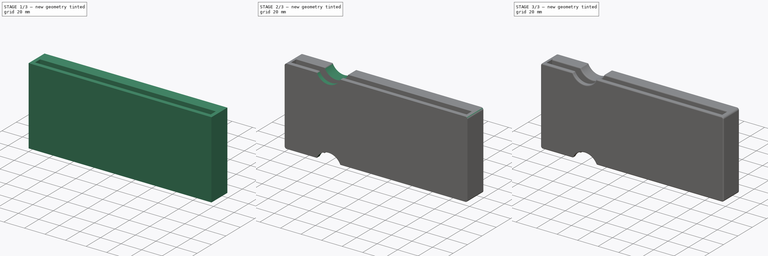
[diagram: build sequence overview — one tinted view per stage of 3, left to right]
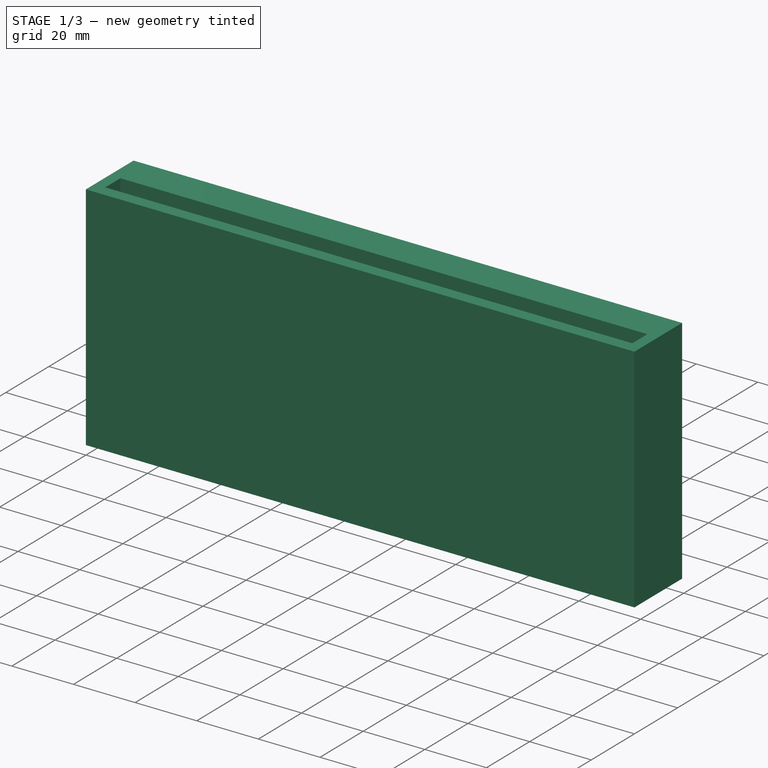
[diagram: stage 1 of 3 — iso view after this stage's code; geometry added in this stage tinted green]
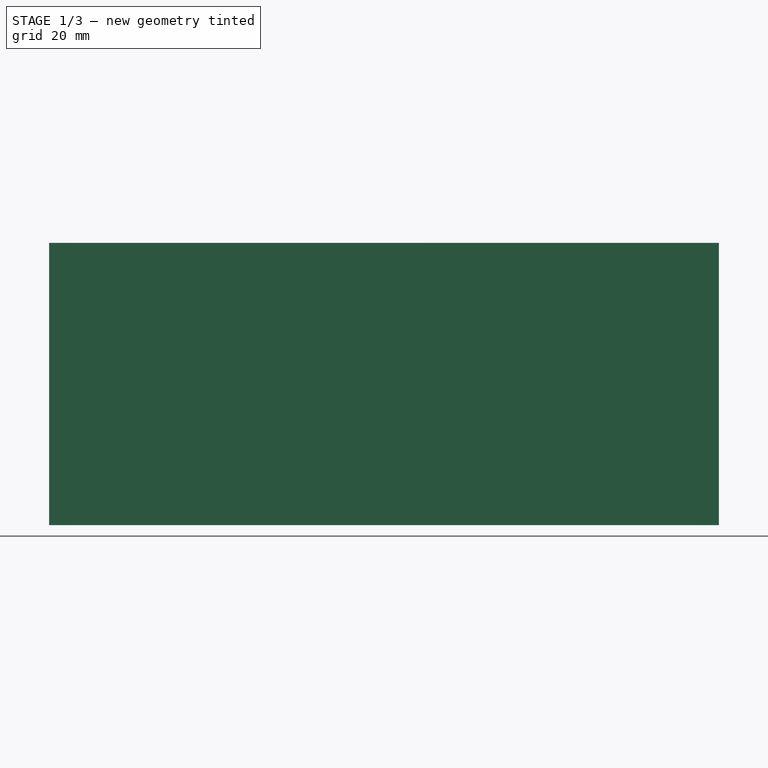
[diagram: stage 1 of 3 — front view after this stage's code; geometry added in this stage tinted green]
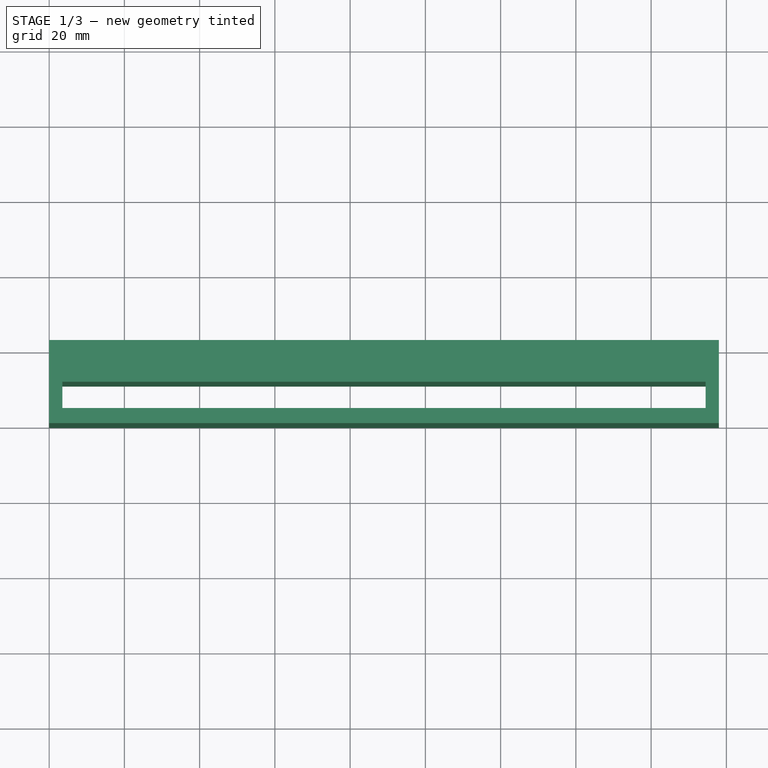
[diagram: stage 1 of 3 — top view after this stage's code; geometry added in this stage tinted green]
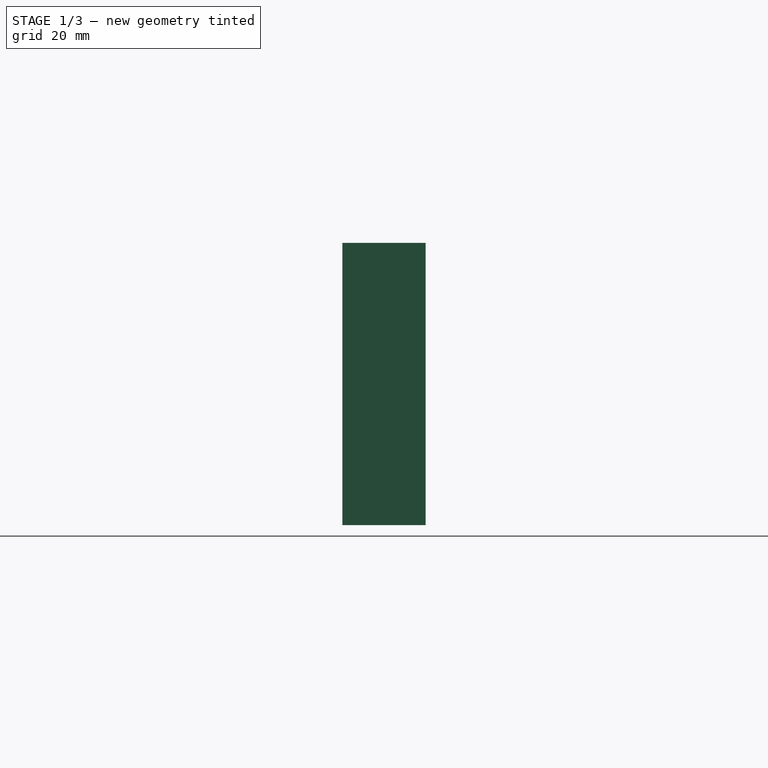
[diagram: stage 1 of 3 — right view after this stage's code; geometry added in this stage tinted green]
FCSTD DOCUMENT  (FreeCAD 1.0R38641 +678 (Git))
Label: lapping_plate_holder
License: All rights reserved
LicenseURL: https://en.wikipedia.org/wiki/All_rights_reserved
objects: Sketcher::SketchObject×4, PartDesign::Pocket×3, PartDesign::Fillet×2, Spreadsheet::Sheet×1, PartDesign::Pad×1, PartDesign::Body×1
note: 27 computed .brp shape members not serialized (recipe doc carries the construction recipe); baked Part::Feature solids carry a one-line shape summary decoded from their .brp

FEATURE [Sketcher::SketchObject] Sketch
  ArcFitTolerance = 1e-06
  AttachmentSupport = -> [XY_Plane001]
  FullyConstrained = true
  MakeInternals = false
  MapMode = 5
  expr: Constraints[19] = Spreadsheet.ewt
  expr: Constraints[20] = Spreadsheet.tt
  expr: Constraints[21] = Spreadsheet.pl
  expr: Constraints[22] = Spreadsheet.pst
  expr: Constraints[2] = Spreadsheet.pl + 2 * Spreadsheet.ewt
  expr: Constraints[5] = Spreadsheet.tt * 2 + Spreadsheet.mh + Spreadsheet.pst + 5
  sketch-geometry (8):
    g0: LineSegment StartX=0 StartY=0 StartZ=0 EndX=178 EndY=0 EndZ=0
    g1: LineSegment StartX=178 StartY=0 StartZ=0 EndX=178 EndY=22.1 EndZ=0
    g2: LineSegment StartX=0 StartY=0 StartZ=0 EndX=0 EndY=22.1 EndZ=0
    g3: LineSegment StartX=178 StartY=22.1 StartZ=0 EndX=0 EndY=22.1 EndZ=0
    g4: LineSegment StartX=3.5 StartY=11 StartZ=0 EndX=3.5 EndY=4 EndZ=0
    g5: LineSegment StartX=3.5 StartY=4 StartZ=0 EndX=174.5 EndY=4 EndZ=0
    g6: LineSegment StartX=174.5 StartY=4 StartZ=0 EndX=174.5 EndY=11 EndZ=0
    g7: LineSegment StartX=174.5 StartY=11 StartZ=0 EndX=3.5 EndY=11 EndZ=0
  constraints (23):
    c: Coincident(g0,g-1)
    c: Horizontal(g0)
    c: DistanceX(g0,g0) = 178
    c: Coincident(g1,g0)
    c: Vertical(g1)
    c: DistanceY(g1,g1) = 22.1
    c: Coincident(g2,g0)
    c: PointOnObject(g2,g-2)
    c: Coincident(g3,g1)
    c: Coincident(g3,g2)
    c: Horizontal(g3)
    c: Coincident(g4,g5)
    c: Coincident(g5,g6)
    c: Coincident(g6,g7)
    c: Coincident(g7,g4)
    c: Vertical(g4)
    c: Vertical(g6)
    c: Horizontal(g5)
    c: Horizontal(g7)
    c: DistanceX(g0,g4) = 3.5
    c: DistanceY(g0,g4) = 4
    c: DistanceX(g5,g5) = 171
    c: DistanceY(g4,g4) = 7
FEATURE [Spreadsheet::Sheet] Spreadsheet
  cells = A1='ph; B1(ph)=1; C1='plate height; A2='pw; B2(pw)=75; C2='plate width; A3='pl; B3(pl)=171; C3='pate lenght; A5='ewt; B5(ewt)=3.5; C5='end wall thickness; A6='tt; B6(tt)=4; C6='top thickness; A7='pst; B7(pst)=7; C7='plate storage thickness; A9='mh; B9(mh)=2.1; C9='magnet height; A10='md; B10(md)=10.5; C10='magnet diameter
FEATURE [PartDesign::Pad] Pad
  Direction = (0,0,1)
  Length = 75
  Length2 = 10
  Profile = -> Sketch
  ReferenceAxis = -> Sketch [N_Axis]
  Refine = true
  Suppressed = false
  Type = 0
  expr: Length = Spreadsheet.pw
FEATURE [Sketcher::SketchObject] Sketch001
  ArcFitTolerance = 1e-06
  AttachmentSupport = -> [Pad]
  FullyConstrained = true
  MakeInternals = false
  MapMode = 5
  Placement = pos=(0,22.1,0) rot=(0,0.707107,0.707107;3.14159rad)
  expr: Constraints[0] = Spreadsheet.md
  expr: Constraints[13] = (2 * Spreadsheet.ewt + Spreadsheet.pl) / 2
  expr: Constraints[19] = 10 + Spreadsheet.md / 2
  expr: Constraints[20] = Spreadsheet.pw - 10 - Spreadsheet.md / 2
  expr: Constraints[21] = Spreadsheet.md / 2 + 10
  sketch-geometry (8):
    g0: Circle CenterX=-162.75 CenterY=59.75 CenterZ=0 NormalX=0 NormalY=0 NormalZ=1 AngleXU=0 Radius=5.25
    g1: Circle CenterX=-162.75 CenterY=15.25 CenterZ=0 NormalX=0 NormalY=0 NormalZ=1 AngleXU=0 Radius=5.25
    g2: Circle CenterX=-15.25 CenterY=59.75 CenterZ=0 NormalX=0 NormalY=0 NormalZ=1 AngleXU=0 Radius=5.25
    g3: Circle CenterX=-15.25 CenterY=15.25 CenterZ=0 NormalX=0 NormalY=0 NormalZ=1 AngleXU=0 Radius=5.25
    g4: Circle CenterX=-89 CenterY=59.75 CenterZ=0 NormalX=0 NormalY=0 NormalZ=1 AngleXU=0 Radius=5.25
    g5: Circle CenterX=-89 CenterY=15.25 CenterZ=0 NormalX=0 NormalY=0 NormalZ=1 AngleXU=0 Radius=5.25
    g6: LineSegment [constr] StartX=-162.75 StartY=15.25 StartZ=0 EndX=-89 EndY=15.25 EndZ=0
    g7: LineSegment [constr] StartX=-89 StartY=15.25 StartZ=0 EndX=-15.25 EndY=15.25 EndZ=0
  constraints (22):
    c: Diameter(g1) = 10.5
    c: Equal(g4,g1)
    c: Equal(g1,g0)
    c: Equal(g0,g5)
    c: Equal(g5,g3)
    c: Equal(g3,g2)
    c: Horizontal(g3,g5)
    c: Horizontal(g5,g1)
    c: Horizontal(g2,g4)
    c: Horizontal(g4,g0)
    c: Vertical(g1,g0)
    c: Vertical(g5,g4)
    c: Vertical(g3,g2)
    c: DistanceX(g5,g-1) = 89
    c: Coincident(g6,g1)
    c: Coincident(g6,g5)
    c: Coincident(g7,g5)
    c: Coincident(g7,g3)
    c: Equal(g6,g7)
    c: DistanceY(g-1,g3) = 15.25
    c: DistanceY(g-1,g2) = 59.75
    c: DistanceX(g3,g-1) = 15.25
FEATURE [PartDesign::Pocket] Pocket
  BaseFeature = -> Pad
  Direction = (0,-1,2e-16)
  Length = 2.1
  Length2 = 5
  Profile = -> Sketch001
  ReferenceAxis = -> Sketch001 [N_Axis]
  Refine = true
  Suppressed = false
  Type = 0
  expr: Length = Spreadsheet.mh
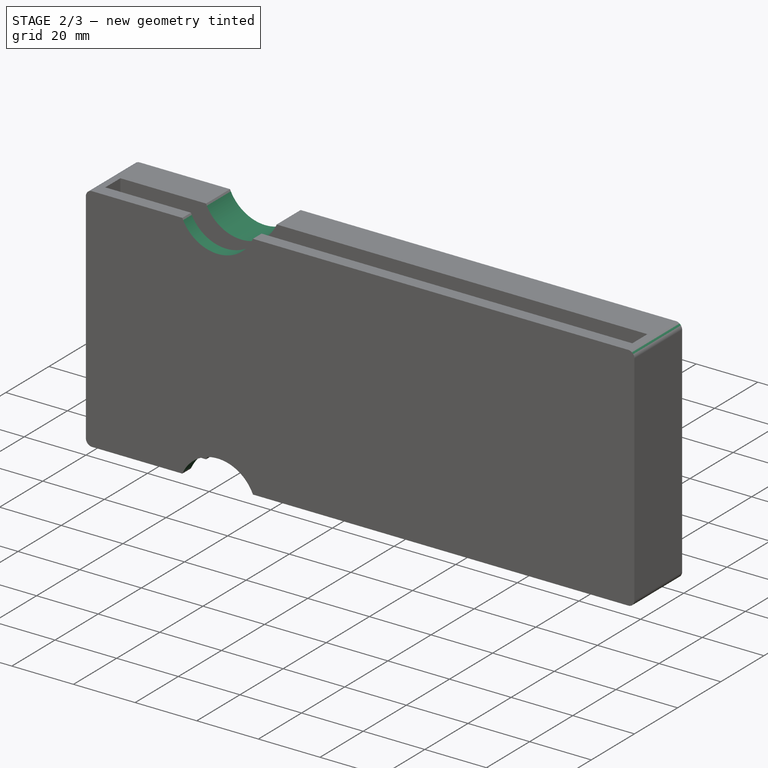
[diagram: stage 2 of 3 — iso view after this stage's code; geometry added in this stage tinted green]
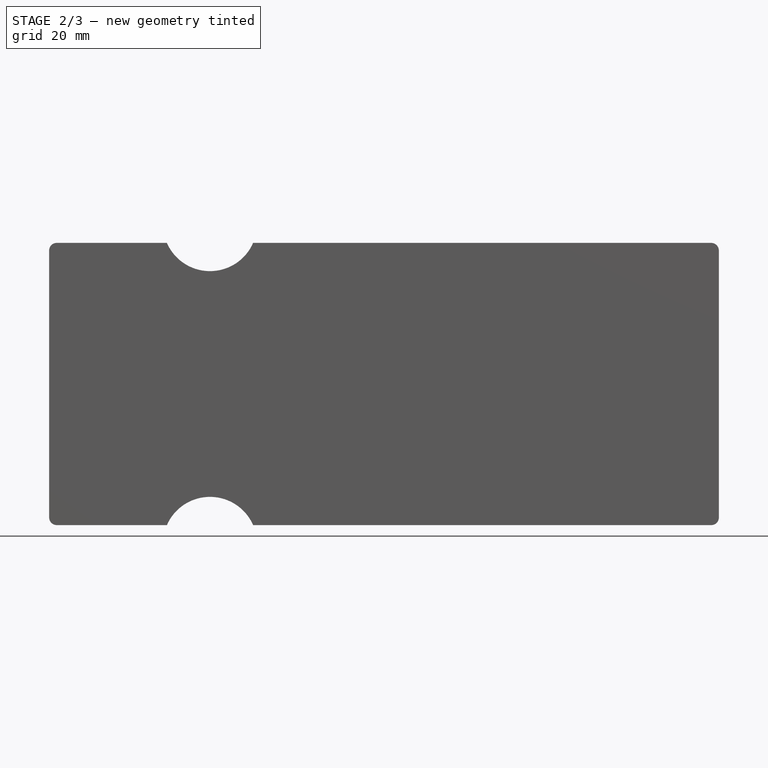
[diagram: stage 2 of 3 — front view after this stage's code; geometry added in this stage tinted green]
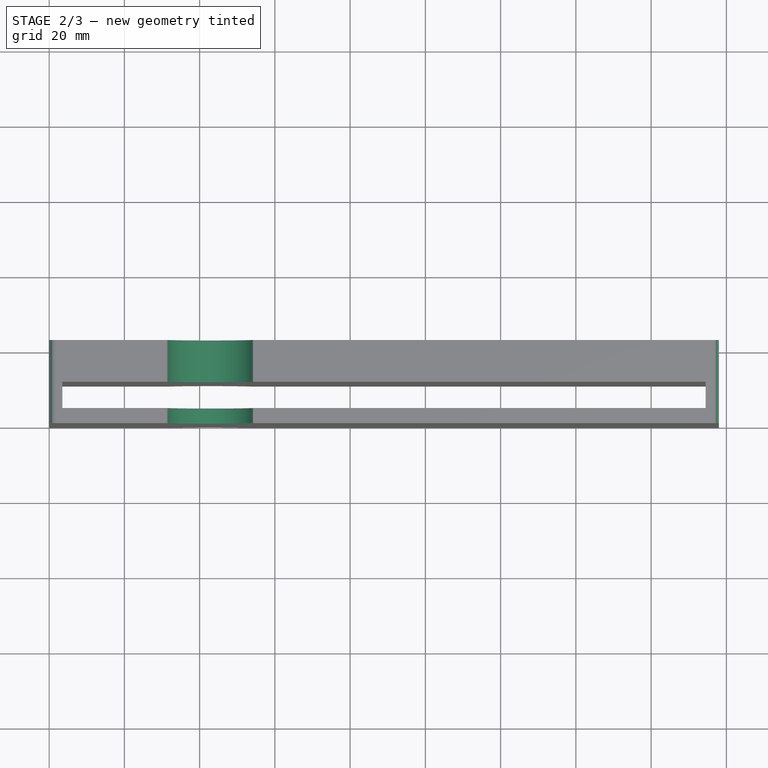
[diagram: stage 2 of 3 — top view after this stage's code; geometry added in this stage tinted green]
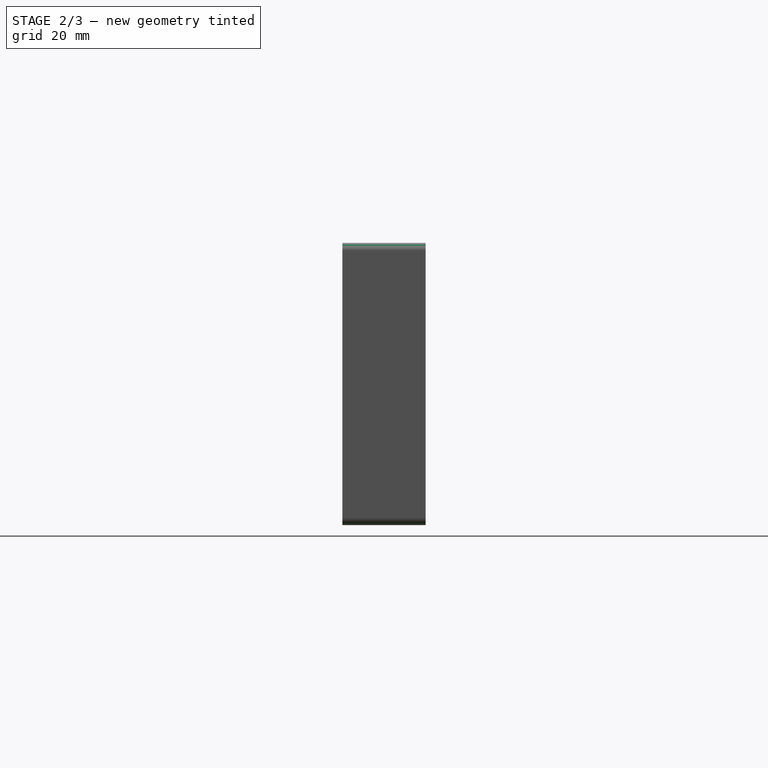
[diagram: stage 2 of 3 — right view after this stage's code; geometry added in this stage tinted green]
FEATURE [Sketcher::SketchObject] Sketch002
  ArcFitTolerance = 1e-06
  AttachmentSupport = -> [Pocket]
  FullyConstrained = true
  MakeInternals = false
  MapMode = 5
  Placement = pos=(0,22.1,0) rot=(0,0.707107,0.707107;3.14159rad)
  expr: Constraints[0] = Spreadsheet.pl / 4
  expr: Constraints[5] = Spreadsheet.pw + 5
  sketch-geometry (2):
    g0: Circle CenterX=-42.75 CenterY=-5 CenterZ=0 NormalX=0 NormalY=0 NormalZ=1 AngleXU=0 Radius=12.5
    g1: Circle CenterX=-42.75 CenterY=80 CenterZ=0 NormalX=0 NormalY=0 NormalZ=1 AngleXU=0 Radius=12.5
  constraints (6):
    c: DistanceX(g0,g-1) = 42.75
    c: Diameter(g0) = 25
    c: DistanceY(g0,g-1) = 5
    c: Vertical(g1,g0)
    c: Equal(g1,g0)
    c: DistanceY(g-1,g1) = 80
FEATURE [PartDesign::Pocket] Pocket001
  BaseFeature = -> Pocket
  Direction = (0,-1,2e-16)
  Length = 50
  Length2 = 5
  Profile = -> Sketch002
  ReferenceAxis = -> Sketch002 [N_Axis]
  Refine = true
  Suppressed = false
  Type = 0
  expr: Length = 50
FEATURE [PartDesign::Fillet] Fillet
  Base = -> Pocket001 [Edge25,Edge23,Edge9,Edge34]
  BaseFeature = -> Pocket001
  Radius = 2
  Refine = true
  SupportTransform = false
  Suppressed = false
  UseAllEdges = false
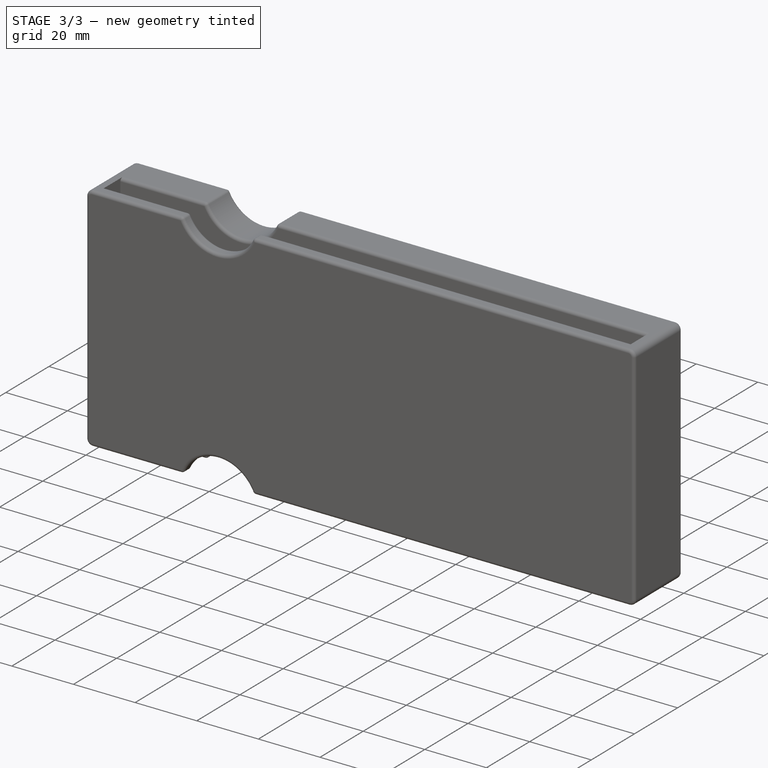
[diagram: stage 3 of 3 — iso view after this stage's code; geometry added in this stage tinted green]
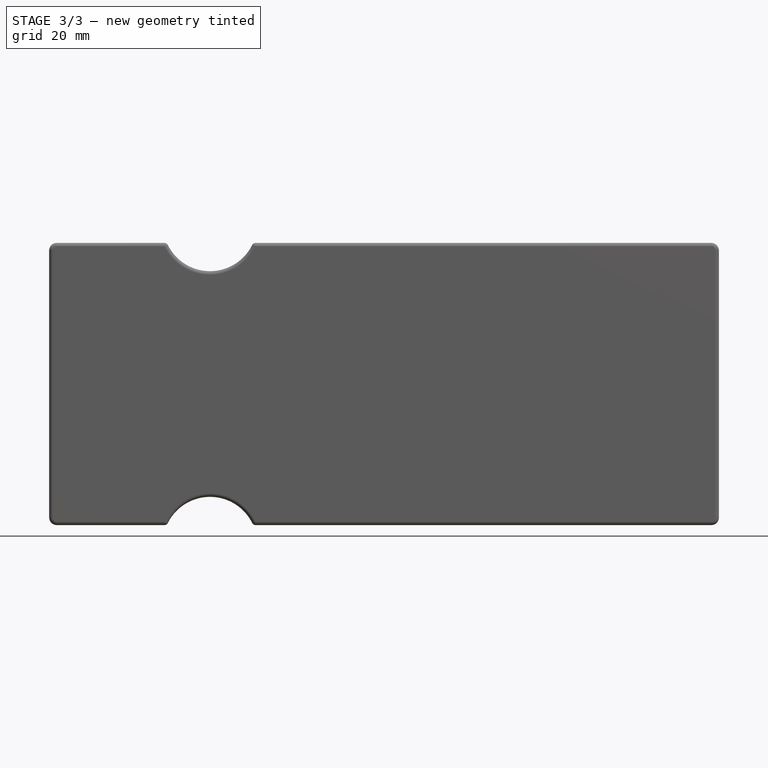
[diagram: stage 3 of 3 — front view after this stage's code; geometry added in this stage tinted green]
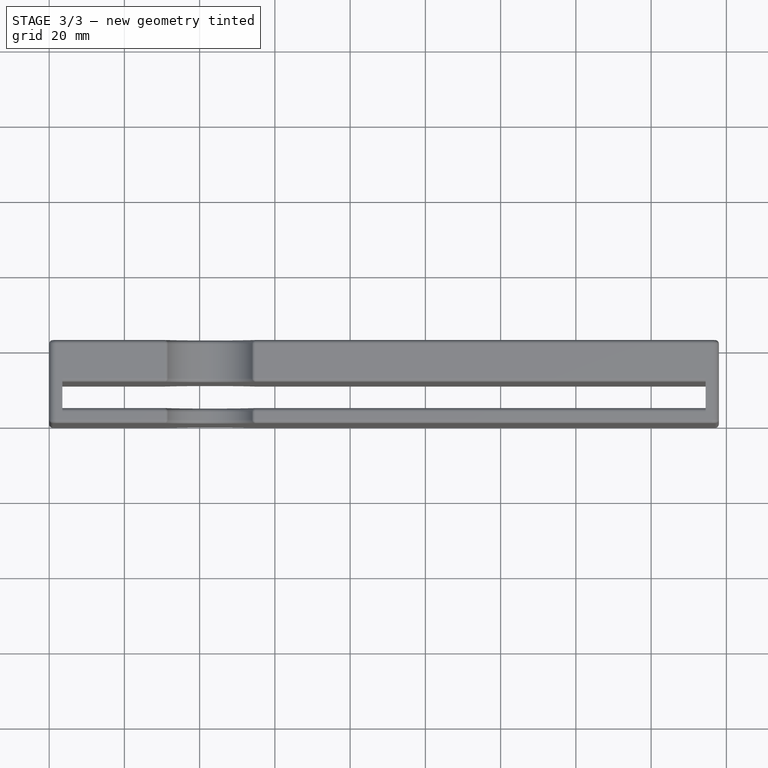
[diagram: stage 3 of 3 — top view after this stage's code; geometry added in this stage tinted green]
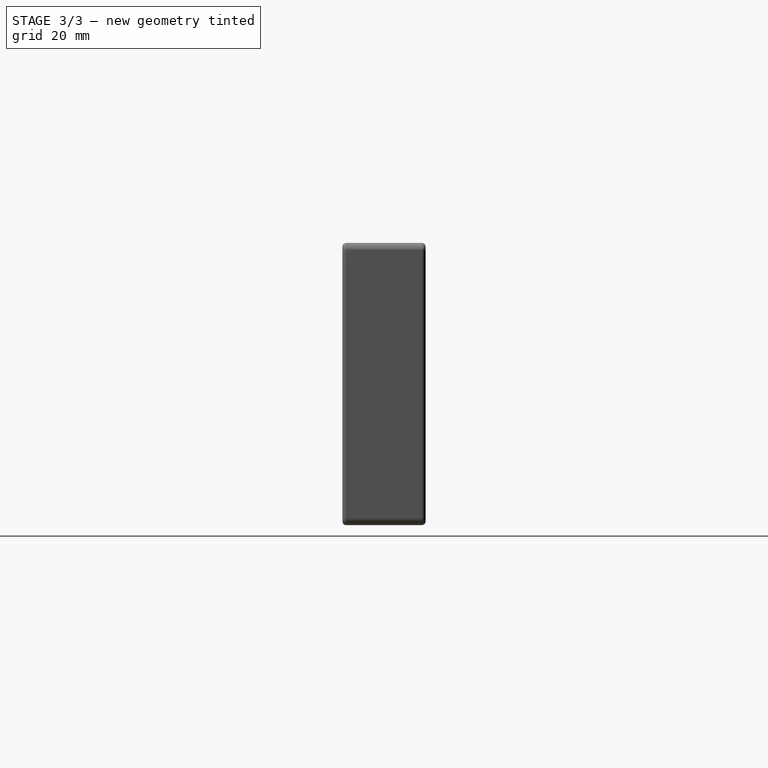
[diagram: stage 3 of 3 — right view after this stage's code; geometry added in this stage tinted green]
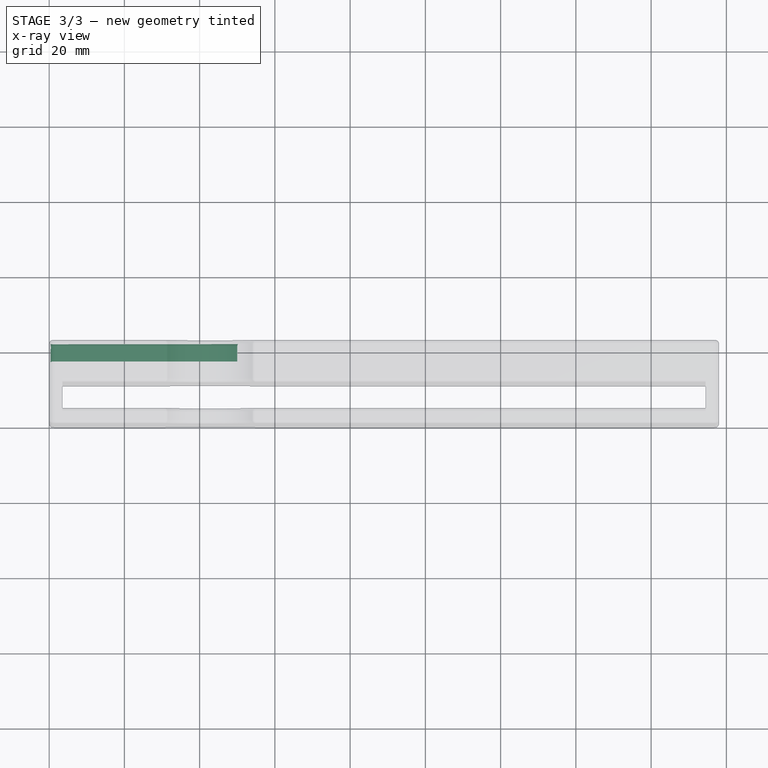
[diagram: stage 3 of 3 — x-ray composite at the top view; earlier geometry ghosted, this stage's added geometry solid]
FEATURE [Sketcher::SketchObject] Sketch003
  ArcFitTolerance = 1e-06
  AttachmentSupport = -> [Pocket001]
  FullyConstrained = true
  MakeInternals = false
  MapMode = 5
  Placement = pos=(0,22.1,0) rot=(0,0.707107,0.707107;3.14159rad)
  expr: Constraints[10] = Spreadsheet.pw / 2 - 5
  sketch-geometry (4):
    g0: LineSegment StartX=-50 StartY=42.5 StartZ=0 EndX=-50 EndY=32.5 EndZ=0
    g1: LineSegment StartX=-50 StartY=32.5 StartZ=0 EndX=0 EndY=32.5 EndZ=0
    g2: LineSegment StartX=0 StartY=32.5 StartZ=0 EndX=0 EndY=42.5 EndZ=0
    g3: LineSegment StartX=0 StartY=42.5 StartZ=0 EndX=-50 EndY=42.5 EndZ=0
  constraints (12):
    c: Coincident(g0,g1)
    c: Coincident(g1,g2)
    c: Coincident(g2,g3)
    c: Coincident(g3,g0)
    c: Vertical(g0)
    c: Vertical(g2)
    c: Horizontal(g1)
    c: Horizontal(g3)
    c: DistanceX(g1,g1) = 50
    c: Vertical(g1,g-1)
    c: DistanceY(g-1,g1) = 32.5
    c: DistanceY(g2,g2) = 10
FEATURE [PartDesign::Pocket] Pocket002
  BaseFeature = -> Fillet
  Direction = (0,-1,2e-16)
  Length = 5
  Length2 = 5
  Profile = -> Sketch003
  ReferenceAxis = -> Sketch003 [N_Axis]
  Refine = true
  Suppressed = false
  Type = 0
FEATURE [PartDesign::Fillet] Fillet002
  Base = -> Pocket002 [Edge58,Edge59,Edge60,Edge24,Edge13,Edge57,Edge30,Edge47,Edge52,Edge54,Edge56,Edge12,Edge61,Edge70,Edge49,Edge10,Edge8,Edge45,Edge42,Edge40,Edge28,Edge26,Edge27,Edge25,Edge4,Edge9,Edge33,Edge5,Edge35,Edge3,Edge22,Edge68,Edge1,Edge16,Edge19,Edge32,Edge15,Edge23,Edge17,Edge48,+3 more]
  BaseFeature = -> Pocket002
  Radius = 1
  Refine = true
  SupportTransform = false
  Suppressed = false
  UseAllEdges = false
FEATURE [PartDesign::Body] Body001
  AllowCompound = false
  Group = -> [Sketch,Pad,Sketch001,Pocket,Sketch002,Pocket001,Fillet,Sketch003,Pocket002,Fillet002]
  Origin = -> Origin001
  Tip = -> Fillet002
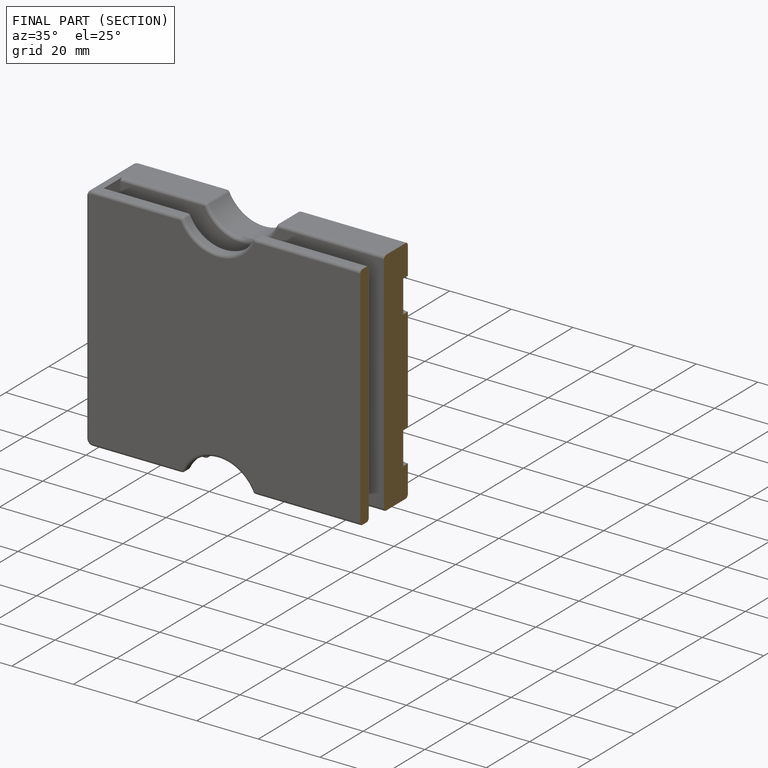
[diagram: finished part — half-section view (interior)]
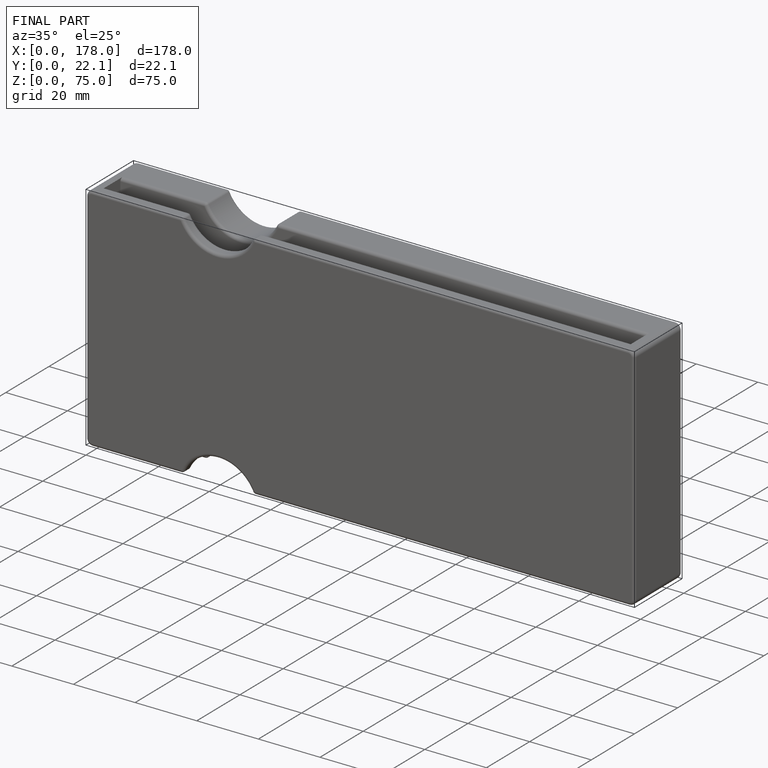
[diagram: finished part — iso view with bounding-box wireframe]
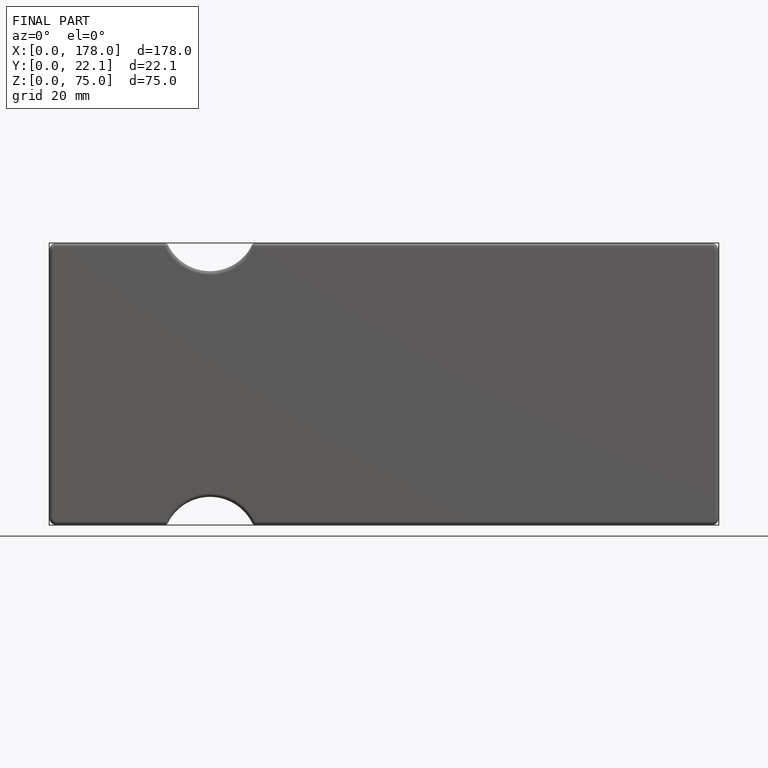
[diagram: finished part — front view with bounding-box wireframe]
